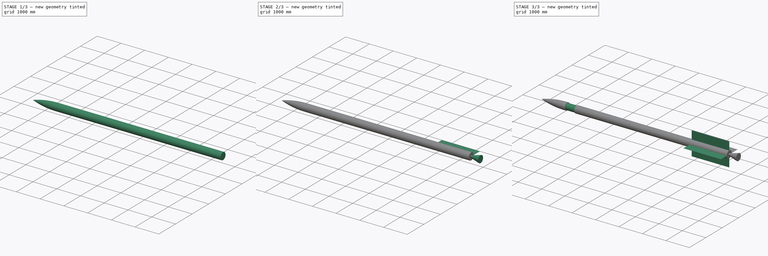
[diagram: build sequence overview — one tinted view per stage of 3, left to right]
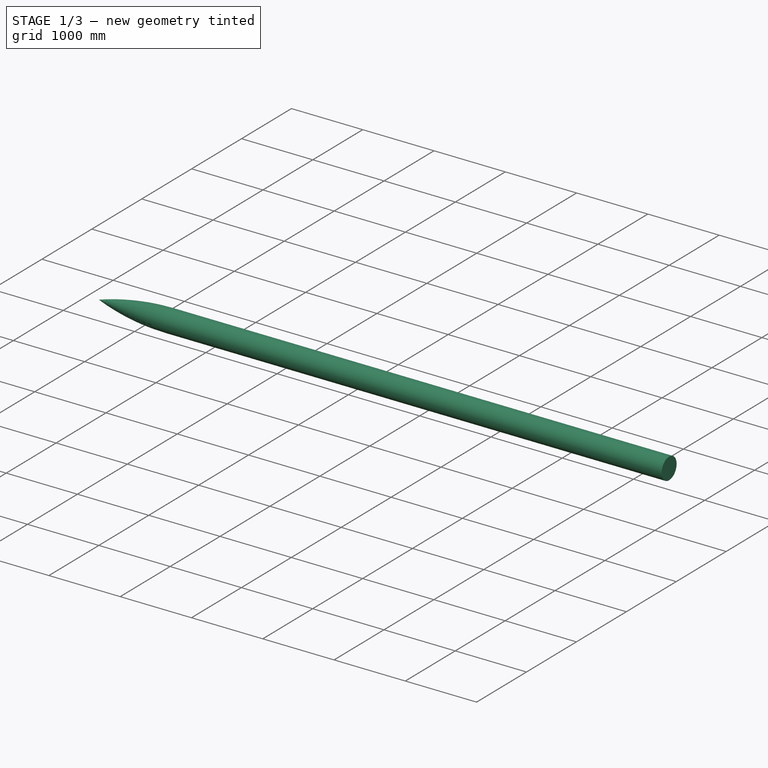
[diagram: stage 1 of 3 — iso view after this stage's code; geometry added in this stage tinted green]
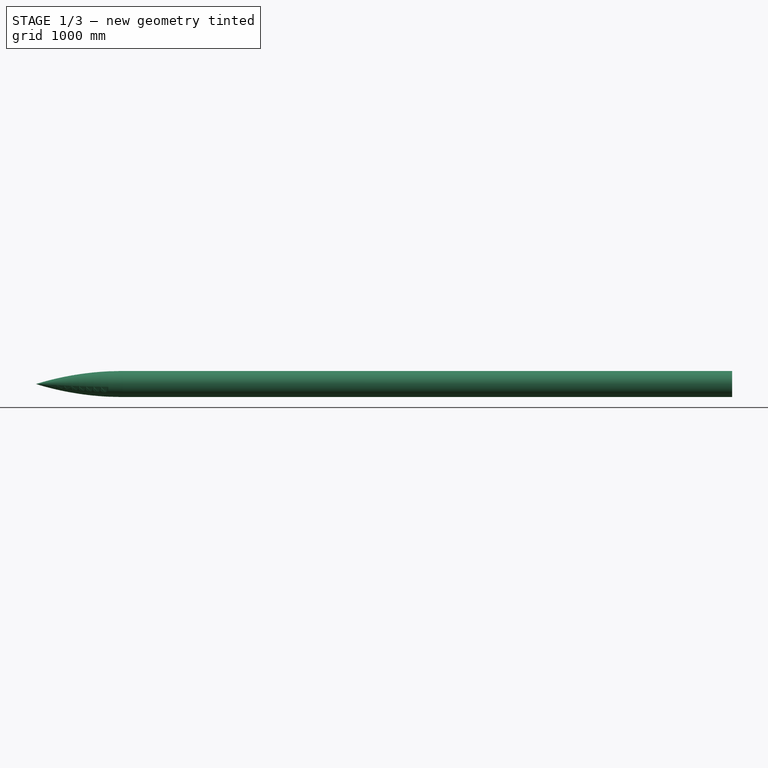
[diagram: stage 1 of 3 — front view after this stage's code; geometry added in this stage tinted green]
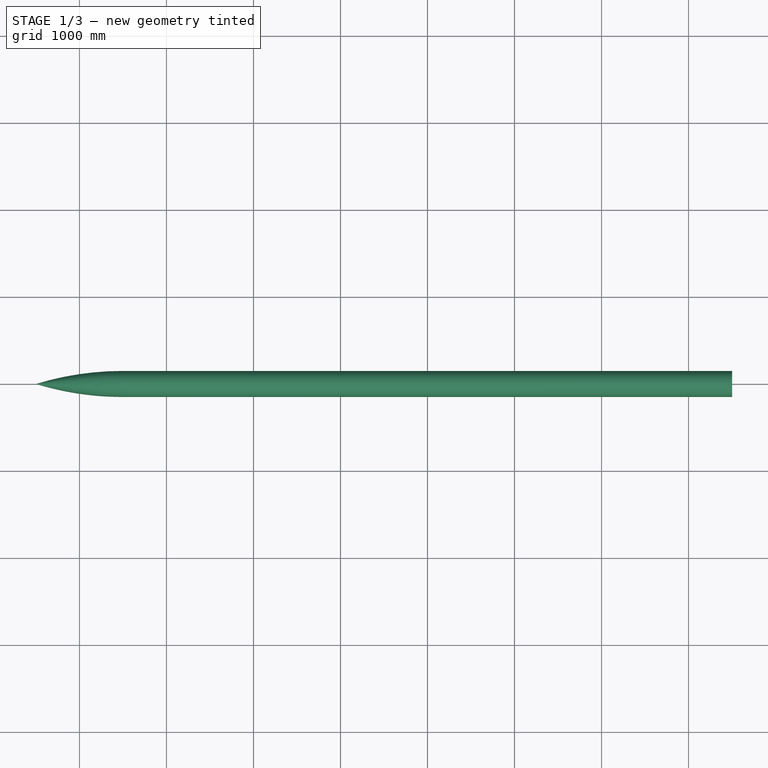
[diagram: stage 1 of 3 — top view after this stage's code; geometry added in this stage tinted green]
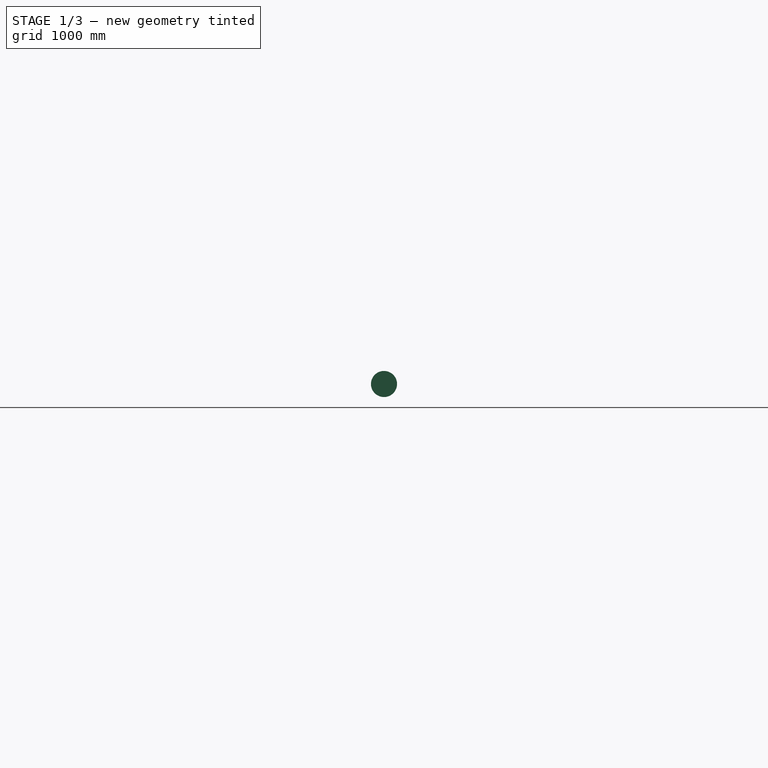
[diagram: stage 1 of 3 — right view after this stage's code; geometry added in this stage tinted green]
FCSTD DOCUMENT  (FreeCAD 0.18R16093 (Git))
Label: Body5
License: All rights reserved
LicenseURL: http://en.wikipedia.org/wiki/All_rights_reserved
objects: Sketcher::SketchObject×5, PartDesign::Revolution×3, PartDesign::Pad×1, PartDesign::PolarPattern×1, PartDesign::MultiTransform×1, PartDesign::Groove×1, PartDesign::Body×1
note: 18 computed .brp shape members not serialized (recipe doc carries the construction recipe); baked Part::Feature solids carry a one-line shape summary decoded from their .brp

FEATURE [Sketcher::SketchObject] Sketch
  MapMode = 5
  Support = -> [XY_Plane]
  sketch-geometry (4):
    g0: LineSegment StartX=-3500 StartY=150 StartZ=0 EndX=3500 EndY=150 EndZ=0
    g1: LineSegment StartX=3500 StartY=150 StartZ=0 EndX=3500 EndY=0 EndZ=0
    g2: LineSegment StartX=3500 StartY=0 StartZ=0 EndX=-3500 EndY=0 EndZ=0
    g3: LineSegment StartX=-3500 StartY=0 StartZ=0 EndX=-3500 EndY=150 EndZ=0
  constraints (11):
    c: Coincident(g0,g1)
    c: Coincident(g1,g2)
    c: Coincident(g2,g3)
    c: Coincident(g3,g0)
    c: Horizontal(g0)
    c: Vertical(g1)
    c: Vertical(g3)
    c: Distance(g2) = 7000
    c: Distance(g1) = 150
    c: Symmetric(g2,g1,g-2)
    c: PointOnObject(g1,g-1)
FEATURE [PartDesign::Revolution] Revolution
  Angle = 360
  Axis = (1,0,0)
  Base = (0,0,0)
  Profile = -> Sketch
  ReferenceAxis = -> Sketch [H_Axis]
  Refine = true
FEATURE [Sketcher::SketchObject] Sketch001
  ExternalGeometry = -> [Revolution]
  MapMode = 5
  Support = -> [XY_Plane]
  sketch-geometry (3):
    g0: ArcOfCircle CenterX=-3500 CenterY=-3258.33 CenterZ=0 NormalX=0 NormalY=0 NormalZ=1 AngleXU=0 Radius=3408.33 StartAngle=1.5708 EndAngle=1.86858
    g1: LineSegment StartX=-4500 StartY=-9.0949e-12 StartZ=0 EndX=-3500 EndY=-9.0949e-12 EndZ=0
    g2: LineSegment StartX=-3500 StartY=150 StartZ=0 EndX=-3500 EndY=-9.0949e-12 EndZ=0
  constraints (10):
    c: PointOnObject(g0,g-3)
    c: PointOnObject(g0,g-3)
    c: DistanceY(g-1,g0) = 150
    c: PointOnObject(g0,g-1)
    c: Distance(g0,g-3) = 1000
    c: Vertical(g2)
    c: Horizontal(g1)
    c: Coincident(g1,g2)
    c: Coincident(g2,g0)
    c: Coincident(g1,g0)
FEATURE [PartDesign::Revolution] Revolution001
  Angle = 360
  Axis = (1,0,0)
  Base = (0,0,0)
  BaseFeature = -> Revolution
  Profile = -> Sketch001
  ReferenceAxis = -> Sketch001 [H_Axis]
  Refine = true
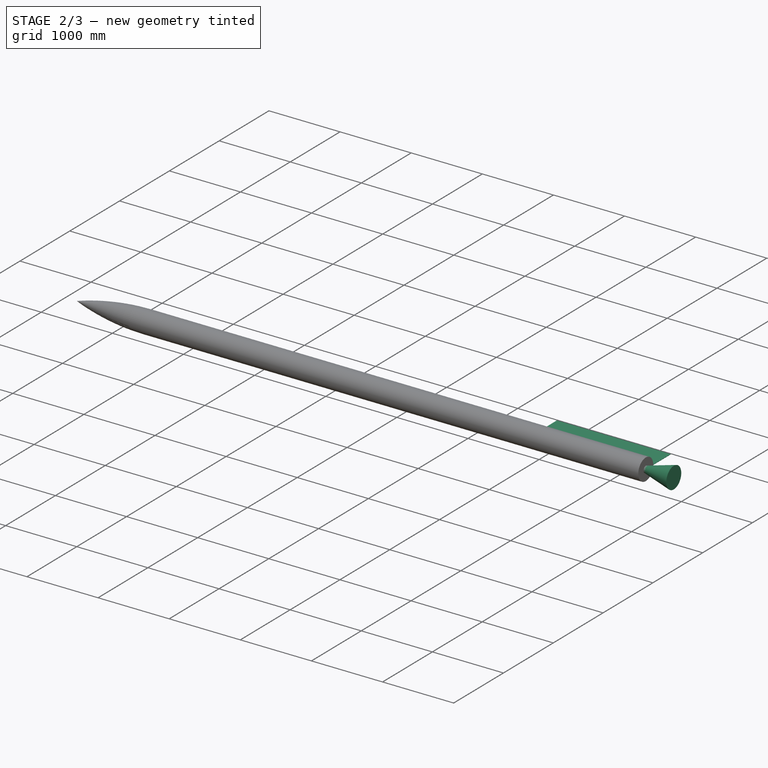
[diagram: stage 2 of 3 — iso view after this stage's code; geometry added in this stage tinted green]
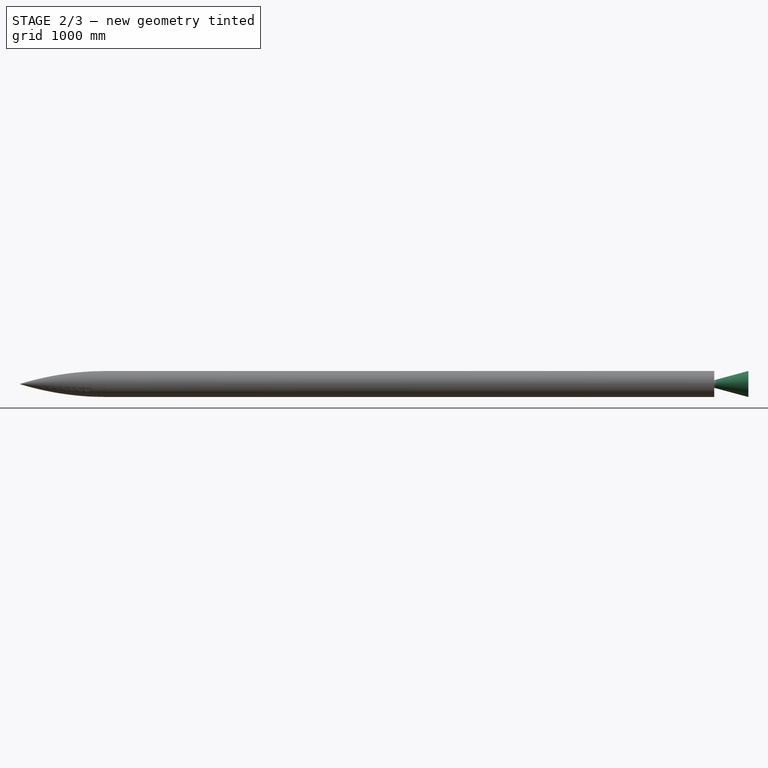
[diagram: stage 2 of 3 — front view after this stage's code; geometry added in this stage tinted green]
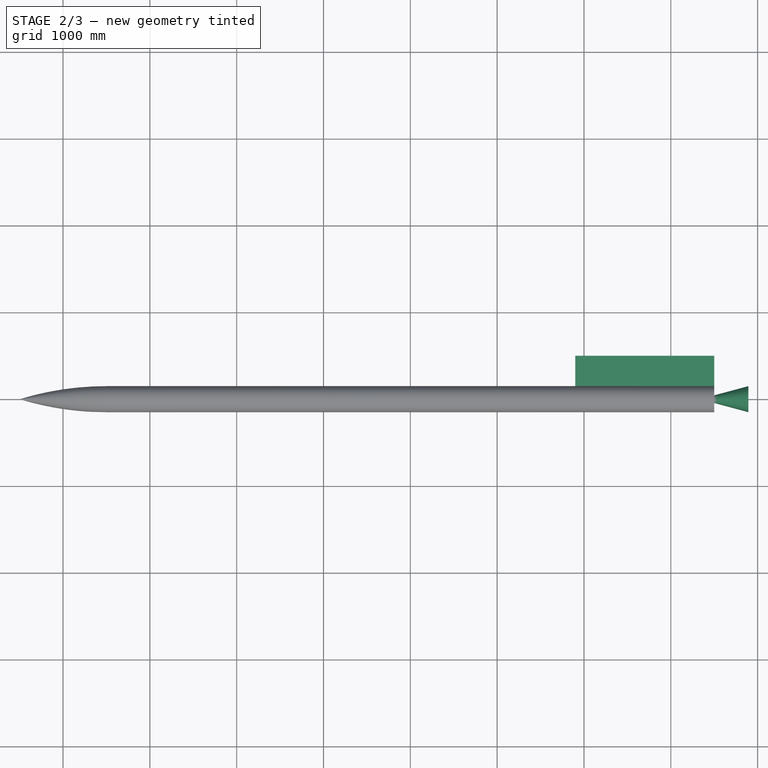
[diagram: stage 2 of 3 — top view after this stage's code; geometry added in this stage tinted green]
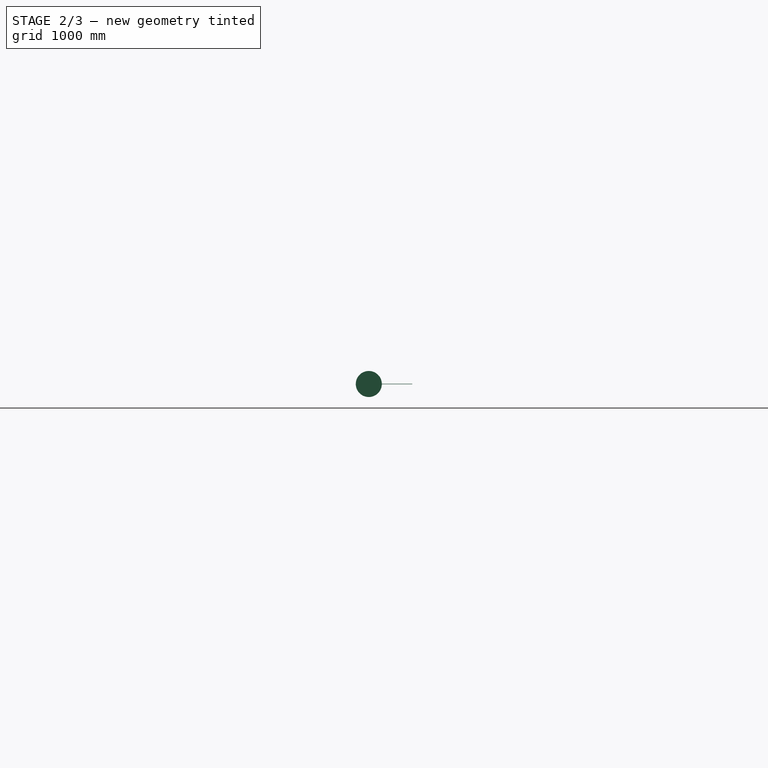
[diagram: stage 2 of 3 — right view after this stage's code; geometry added in this stage tinted green]
FEATURE [Sketcher::SketchObject] Sketch002
  ExternalGeometry = -> [Revolution001]
  MapMode = 5
  Support = -> [XY_Plane]
  sketch-geometry (4):
    g0: LineSegment StartX=3500 StartY=44.5 StartZ=0 EndX=3893.73 EndY=150 EndZ=0
    g1: LineSegment StartX=3893.73 StartY=150 StartZ=0 EndX=3893.73 EndY=0 EndZ=0
    g2: LineSegment StartX=3893.73 StartY=0 StartZ=0 EndX=3500 EndY=0 EndZ=0
    g3: LineSegment StartX=3500 StartY=44.5 StartZ=0 EndX=3500 EndY=0 EndZ=0
  constraints (12):
    c: Horizontal(g2)
    c: Vertical(g1)
    c: Coincident(g1,g2)
    c: Coincident(g0,g1)
    c: Coincident(g3,g0)
    c: Vertical(g3)
    c: Coincident(g2,g3)
    c: PointOnObject(g2,g-1)
    c: PointOnObject(g2,g-3)
    c: Angle(g2,g0) = 0.261799
    c: Distance(g1) = 150
    c: Distance(g0,g2) = 44.5
FEATURE [PartDesign::Revolution] Revolution002
  Angle = 360
  Axis = (1,0,0)
  Base = (0,0,0)
  BaseFeature = -> Revolution001
  Profile = -> Sketch002
  ReferenceAxis = -> Sketch002 [H_Axis]
  Refine = true
FEATURE [Sketcher::SketchObject] Sketch003
  ExternalGeometry = -> [Revolution002]
  MapMode = 5
  Support = -> [XY_Plane]
  sketch-geometry (4):
    g0: LineSegment StartX=1900 StartY=500 StartZ=0 EndX=3500 EndY=500 EndZ=0
    g1: LineSegment StartX=3500 StartY=500 StartZ=0 EndX=3500 EndY=140 EndZ=0
    g2: LineSegment StartX=3500 StartY=140 StartZ=0 EndX=1900 EndY=140 EndZ=0
    g3: LineSegment StartX=1900 StartY=140 StartZ=0 EndX=1900 EndY=500 EndZ=0
  constraints (12):
    c: Coincident(g0,g1)
    c: Coincident(g1,g2)
    c: Coincident(g2,g3)
    c: Coincident(g3,g0)
    c: Horizontal(g0)
    c: Horizontal(g2)
    c: Vertical(g1)
    c: Vertical(g3)
    c: Distance(g1) = 360
    c: Distance(g0) = 1600
    c: PointOnObject(g1,g-3)
    c: DistanceY(g-1,g1) = 140
FEATURE [PartDesign::Pad] Pad
  BaseFeature = -> Revolution002
  Length = 5
  Length2 = 100
  Midplane = true
  Profile = -> Sketch003
  Refine = true
  Type = 0
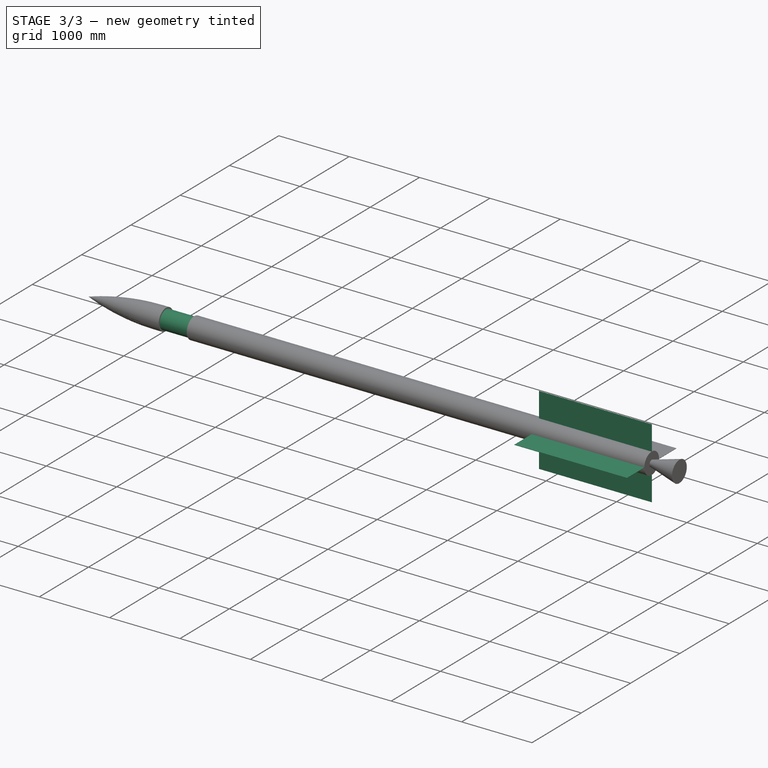
[diagram: stage 3 of 3 — iso view after this stage's code; geometry added in this stage tinted green]
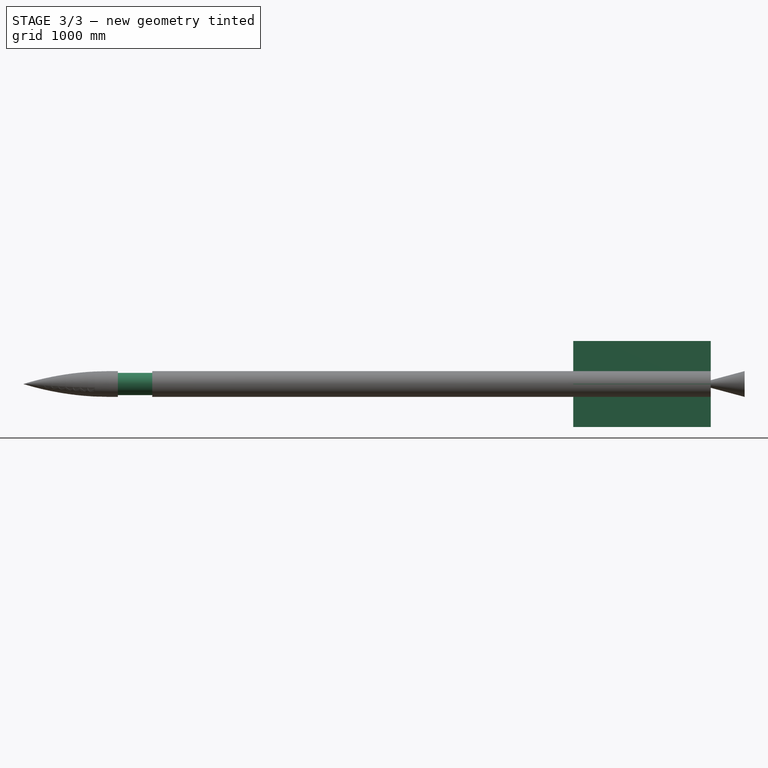
[diagram: stage 3 of 3 — front view after this stage's code; geometry added in this stage tinted green]
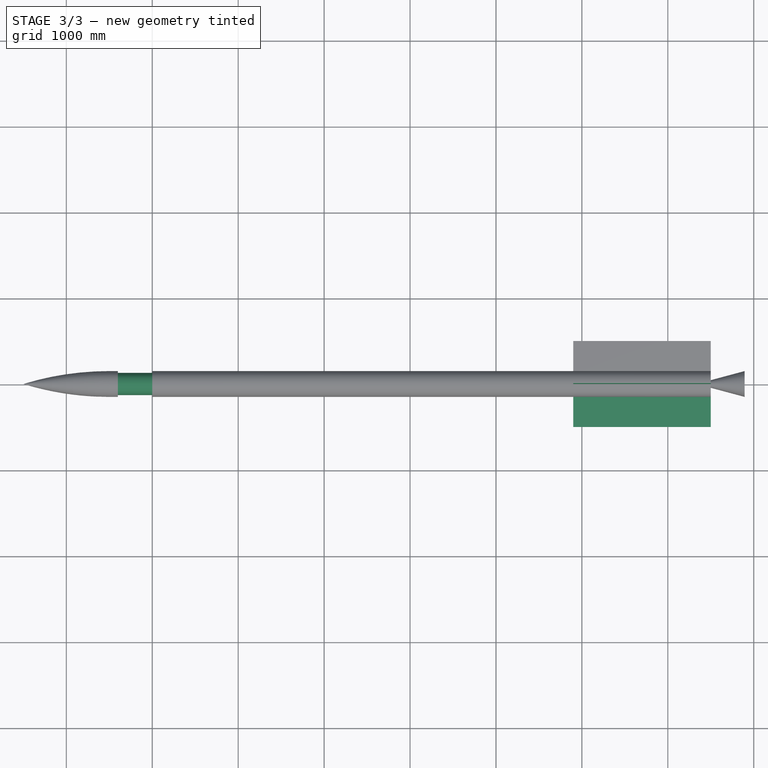
[diagram: stage 3 of 3 — top view after this stage's code; geometry added in this stage tinted green]
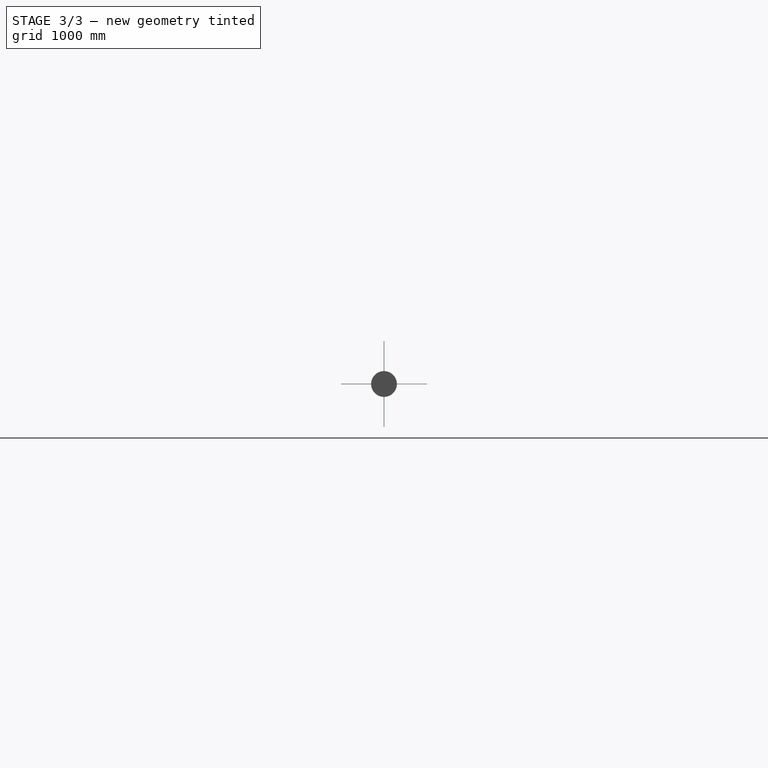
[diagram: stage 3 of 3 — right view after this stage's code; geometry added in this stage tinted green]
FEATURE [PartDesign::PolarPattern] PolarPattern
  Angle = 360
  Axis = -> Sketch003 [H_Axis]
  Occurrences = 4
  Refine = true
FEATURE [PartDesign::MultiTransform] MultiTransform
  BaseFeature = -> Pad
  Originals = -> [Pad]
  Refine = true
  Transformations = -> [PolarPattern]
FEATURE [Sketcher::SketchObject] Sketch004
  MapMode = 5
  Support = -> [XY_Plane]
  sketch-geometry (4):
    g0: LineSegment StartX=-3400 StartY=130 StartZ=0 EndX=-3000 EndY=130 EndZ=0
    g1: LineSegment StartX=-3000 StartY=130 StartZ=0 EndX=-3000 EndY=150 EndZ=0
    g2: LineSegment StartX=-3000 StartY=150 StartZ=0 EndX=-3400 EndY=150 EndZ=0
    g3: LineSegment StartX=-3400 StartY=150 StartZ=0 EndX=-3400 EndY=130 EndZ=0
  constraints (12):
    c: Coincident(g0,g1)
    c: Coincident(g1,g2)
    c: Coincident(g2,g3)
    c: Coincident(g3,g0)
    c: Horizontal(g0)
    c: Horizontal(g2)
    c: Vertical(g1)
    c: Vertical(g3)
    c: Distance(g1) = 20
    c: Distance(g0) = 400
    c: DistanceX(g-2,g1) = -3000
    c: DistanceY(g-1,g0) = 130
FEATURE [PartDesign::Groove] Groove
  Angle = 360
  Axis = (1,0,0)
  Base = (0,0,0)
  BaseFeature = -> MultiTransform
  Profile = -> Sketch004
  ReferenceAxis = -> Sketch004 [H_Axis]
  Refine = true
  Reversed = true
FEATURE [PartDesign::Body] Body
  Group = -> [Sketch,Revolution,Sketch001,Revolution001,Sketch002,Revolution002,Sketch003,Pad,MultiTransform,PolarPattern,Sketch004,Groove]
  Origin = -> Origin
  Tip = -> Groove
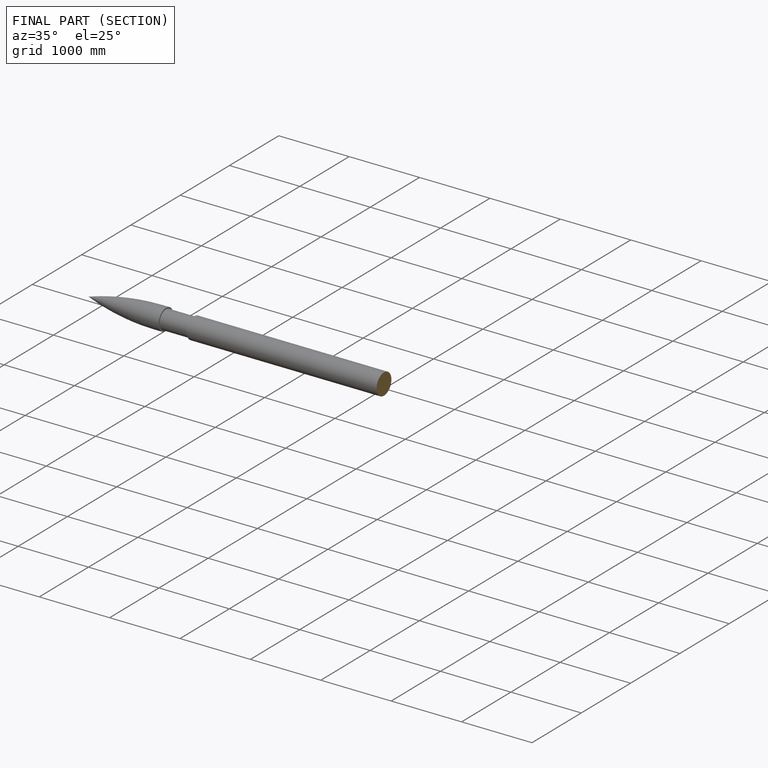
[diagram: finished part — half-section view (interior)]
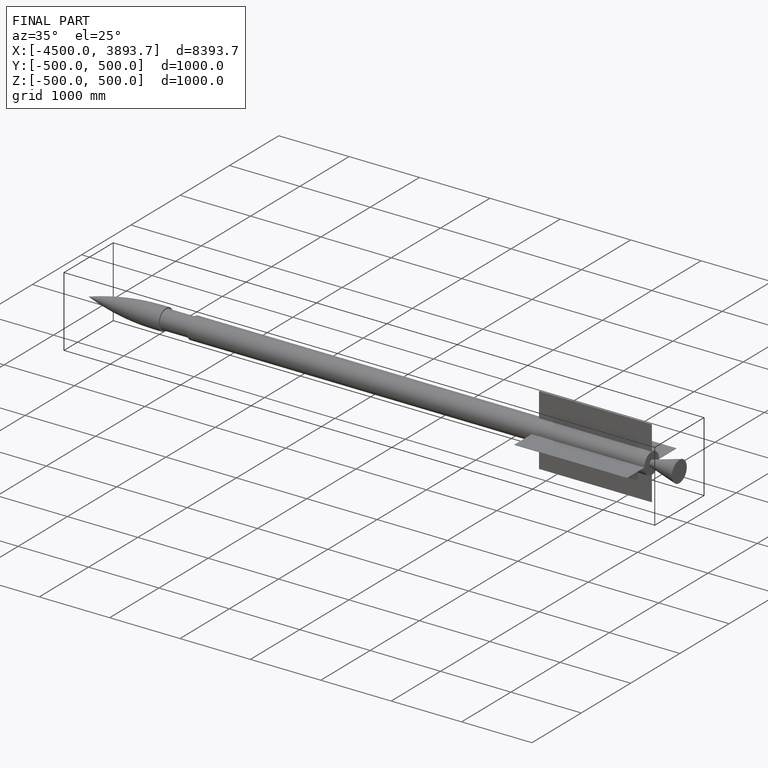
[diagram: finished part — iso view with bounding-box wireframe]
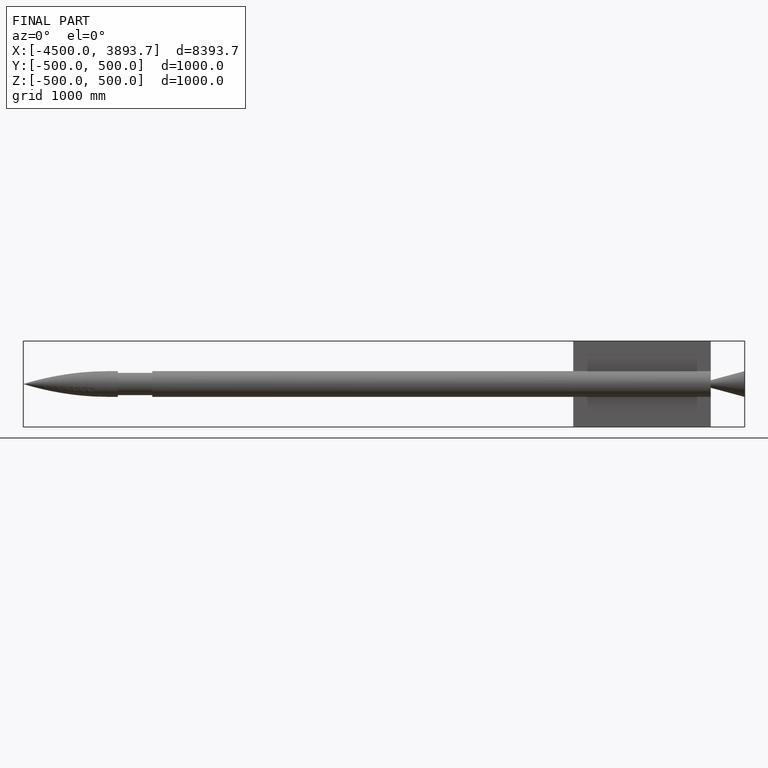
[diagram: finished part — front view with bounding-box wireframe]
